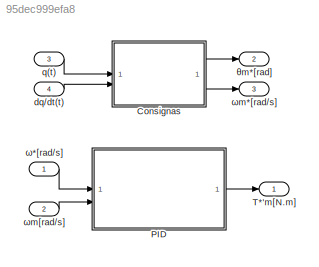
MODEL slx_95dec999efa8
KIND model
CONFIG AbsTol = auto
CONFIG EnableMultiTasking = off
CONFIG FixedStep = auto
CONFIG MaxStep = auto
CONFIG MinStep = auto
CONFIG RelTol = 1e-3
CONFIG SampleTimeConstraint = Unconstrained
CONFIG SolverName = VariableStepAuto
CONFIG StartTime = 0.0
CONFIG StopTime = 10.0
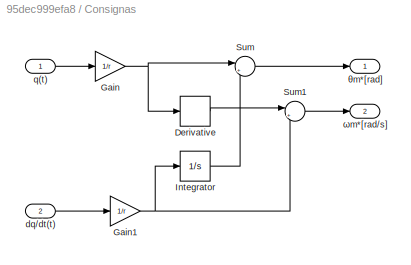
BLOCK [SubSystem] Consignas
BLOCK [Derivative] Consignas/Derivative
BLOCK [Gain] Consignas/Gain
  Gain = 1/r
BLOCK [Gain] Consignas/Gain1
  Gain = 1/r
BLOCK [Integrator] Consignas/Integrator
BLOCK [Sum] Consignas/Sum
  Inputs = |++
BLOCK [Sum] Consignas/Sum1
  Inputs = |++
BLOCK [Inport] Consignas/dq//dt(t)
  Port = 2
BLOCK [Inport] Consignas/q(t)
BLOCK [Outport] Consignas/θm*[rad]
BLOCK [Outport] Consignas/ωm*[rad//s]
  Port = 2
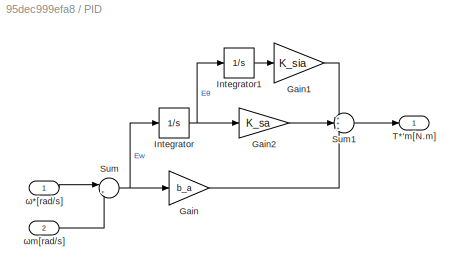
BLOCK [SubSystem] PID
BLOCK [Gain] PID/Gain
  Gain = b_a
BLOCK [Gain] PID/Gain1
  Gain = K_sia
BLOCK [Gain] PID/Gain2
  Gain = K_sa
BLOCK [Integrator] PID/Integrator
BLOCK [Integrator] PID/Integrator1
BLOCK [Sum] PID/Sum
  Inputs = |+-
BLOCK [Sum] PID/Sum1
  Inputs = +++
BLOCK [Outport] PID/T*'m[N.m]
BLOCK [Inport] PID/ω*[rad//s]
BLOCK [Inport] PID/ωm[rad//s]
  Port = 2
BLOCK [Outport] T*'m[N.m]
BLOCK [Inport] dq//dt(t)
  Port = 4
BLOCK [Inport] q(t)
  Port = 3
BLOCK [Outport] θm*[rad]
  Port = 2
BLOCK [Inport] ω*[rad//s]
BLOCK [Outport] ωm*[rad//s]
  Port = 3
BLOCK [Inport] ωm[rad//s]
  Port = 2
LINE Consignas/Derivative:1 -> Consignas/Sum1:1
NET Consignas/Gain1:1 -> Consignas/Integrator:1, Consignas/Sum1:2
NET Consignas/Gain:1 -> Consignas/Derivative:1, Consignas/Sum:1
LINE Consignas/Integrator:1 -> Consignas/Sum:2
LINE Consignas/Sum1:1 -> Consignas/ωm*[rad//s]:1
LINE Consignas/Sum:1 -> Consignas/θm*[rad]:1
LINE Consignas/dq//dt(t):1 -> Consignas/Gain1:1
LINE Consignas/q(t):1 -> Consignas/Gain:1
LINE Consignas:1 -> θm*[rad]:1
LINE Consignas:2 -> ωm*[rad//s]:1
LINE PID/Gain1:1 -> PID/Sum1:1
LINE PID/Gain2:1 -> PID/Sum1:2
LINE PID/Gain:1 -> PID/Sum1:3
LINE PID/Integrator1:1 -> PID/Gain1:1
NET PID/Integrator:1 -> PID/Gain2:1, PID/Integrator1:1
LINE PID/Sum1:1 -> PID/T*'m[N.m]:1
NET PID/Sum:1 -> PID/Gain:1, PID/Integrator:1
LINE PID/ω*[rad//s]:1 -> PID/Sum:1
LINE PID/ωm[rad//s]:1 -> PID/Sum:2
LINE PID:1 -> T*'m[N.m]:1
LINE dq//dt(t):1 -> Consignas:2
LINE q(t):1 -> Consignas:1
LINE ω*[rad//s]:1 -> PID:1
LINE ωm[rad//s]:1 -> PID:2
note: NET lines group one-source signal fan-out (src -> all destinations, sorted); 1:1 wires keep LINE
